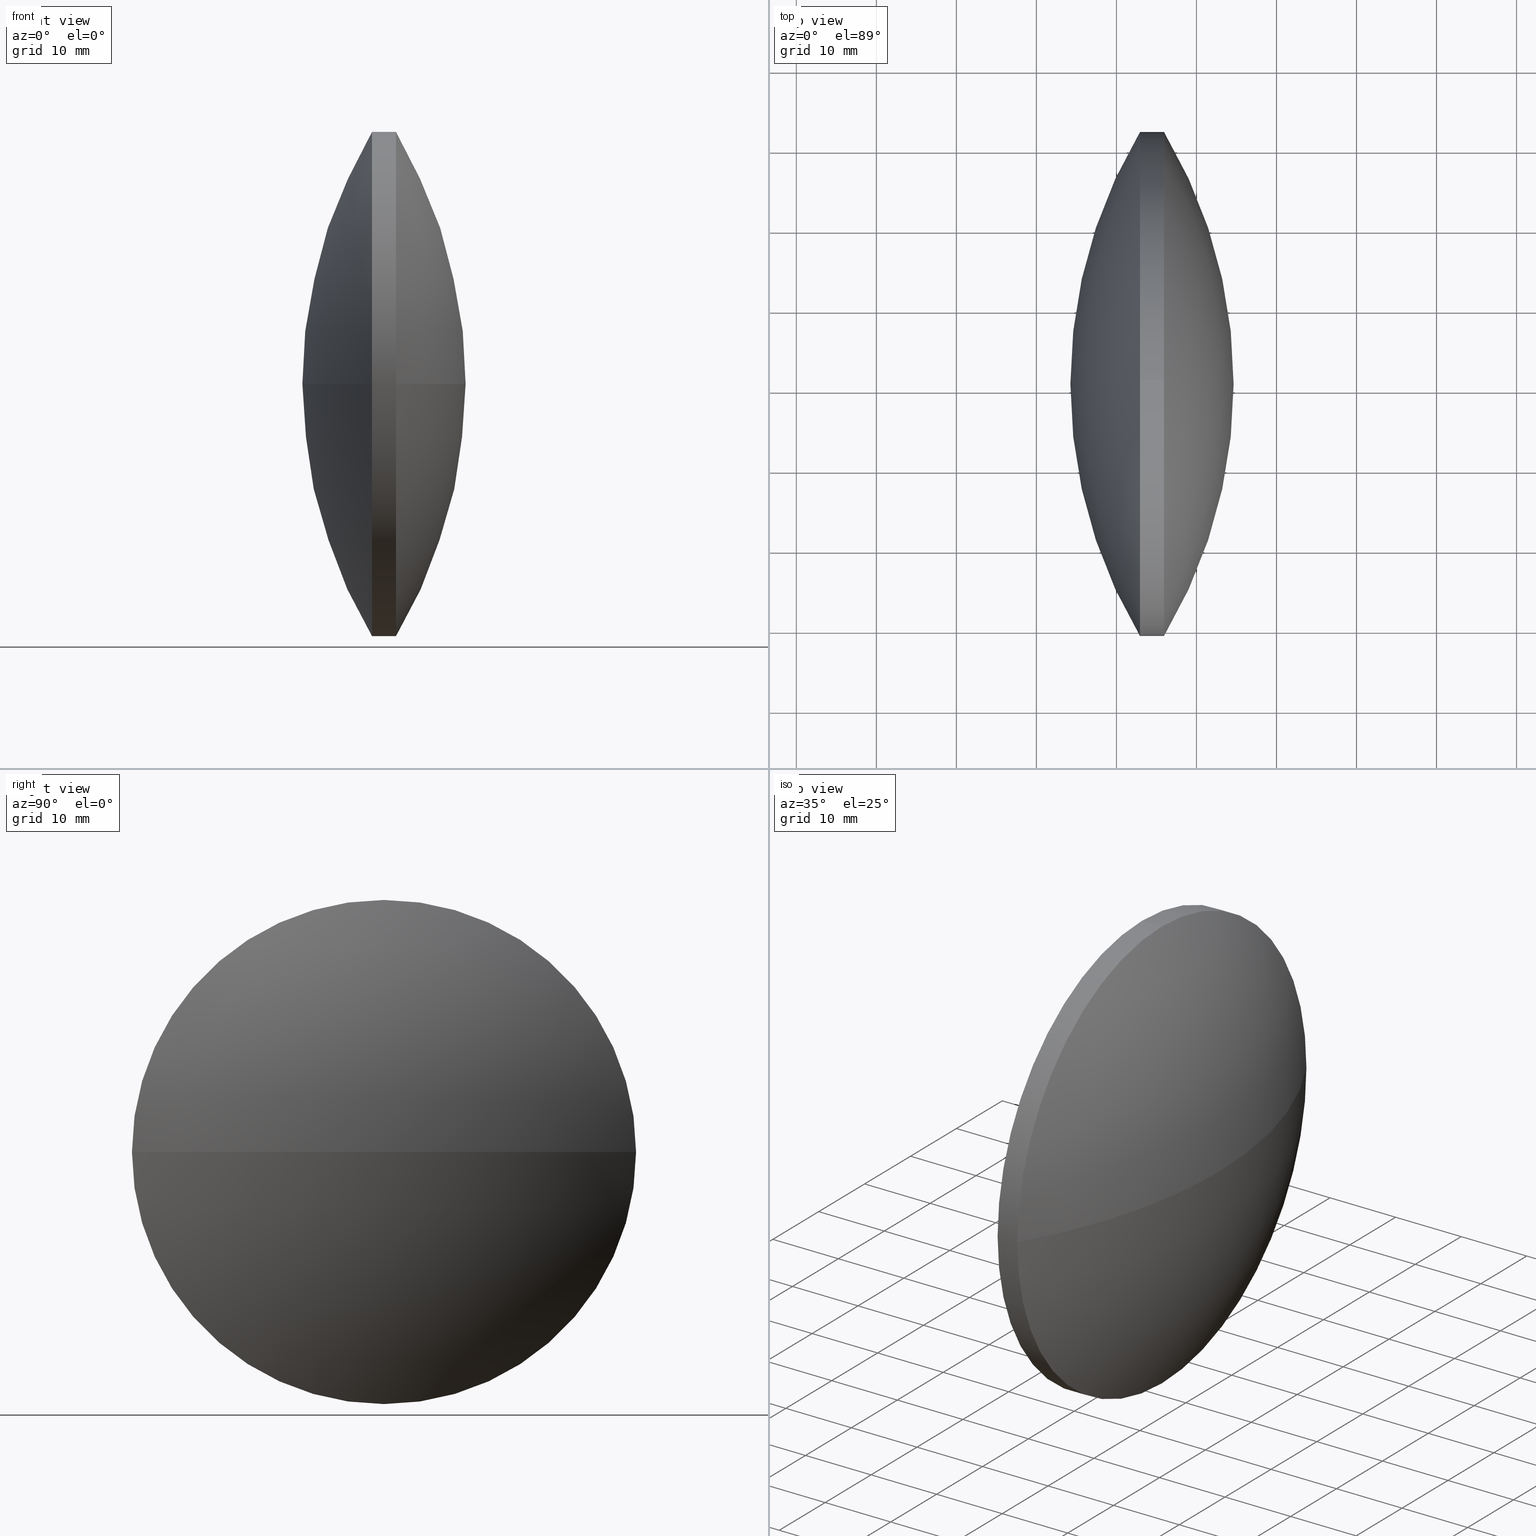
[diagram: canonical four-view strip — front | top / right | iso, engineering-drawing reading convention]
A machine part, canonical four-view strip (front | top / right | iso — engineering-drawing reading convention). The complete STEP part file that produces these views, byte-faithful:
ISO-10303-21;
HEADER;
FILE_DESCRIPTION (( 'STEP AP203' ),
    '1' );
FILE_NAME ('110020.STEP',
    '2019-06-25T06:21:55',
    ( '' ),
    ( '' ),
    'SwSTEP 2.0',
    'SolidWorks 2016',
    '' );
FILE_SCHEMA (( 'CONFIG_CONTROL_DESIGN' ));
ENDSEC;

DATA;
#1 = VERTEX_POINT ( 'NONE', #78 ) ;
#2 = DIRECTION ( 'NONE',  ( 0.0000000000000000000, 0.0000000000000000000, 1.000000000000000000 ) ) ;
#3 = CARTESIAN_POINT ( 'NONE',  ( 215.9444092659714400, 120.5837547940985100, -31.50012600050371200 ) ) ;
#4 = DIRECTION ( 'NONE',  ( -1.000000000000000000, -0.0000000000000000000, -0.0000000000000000000 ) ) ;
#5 = CC_DESIGN_PERSON_AND_ORGANIZATION_ASSIGNMENT ( #311, #159, ( #213 ) ) ;
#6 = DATE_AND_TIME ( #60, #215 ) ;
#7 = ORIENTED_EDGE ( 'NONE', *, *, #71, .F. ) ;
#8 = DIRECTION ( 'NONE',  ( 0.0000000000000000000, 0.0000000000000000000, 1.000000000000000000 ) ) ;
#9 = CARTESIAN_POINT ( 'NONE',  ( 215.9444092659714400, 120.5837547940985100, 0.0000000000000000000 ) ) ;
#10 = DATE_AND_TIME ( #136, #76 ) ;
#11 = ADVANCED_FACE ( 'NONE', ( #165 ), #216, .T. ) ;
#12 = PRODUCT_DEFINITION ( 'δ֪', '', #331, #53 ) ;
#13 = PERSON_AND_ORGANIZATION_ROLE ( 'creator' ) ;
#14 = DATE_AND_TIME ( #337, #160 ) ;
#15 = CIRCLE ( 'NONE', #44, 31.50012600050371200 ) ;
#16 = VERTEX_POINT ( 'NONE', #141 ) ;
#17 =( NAMED_UNIT ( * ) PLANE_ANGLE_UNIT ( ) SI_UNIT ( $, .RADIAN. ) );
#18 = CALENDAR_DATE ( 2019, 25, 6 ) ;
#19 =( GEOMETRIC_REPRESENTATION_CONTEXT ( 3 ) GLOBAL_UNCERTAINTY_ASSIGNED_CONTEXT ( ( #57 ) ) GLOBAL_UNIT_ASSIGNED_CONTEXT ( ( #180, #17, #208 ) ) REPRESENTATION_CONTEXT ( 'NONE', 'WORKASPACE' ) );
#20 = FACE_OUTER_BOUND ( 'NONE', #135, .T. ) ;
#21 = APPLICATION_PROTOCOL_DEFINITION ( 'international standard', 'config_control_design', 1994, #162 ) ;
#22 = APPROVAL_PERSON_ORGANIZATION ( #100, #233, #187 ) ;
#23 = ORIENTED_EDGE ( 'NONE', *, *, #266, .F. ) ;
#24 = APPROVAL_DATE_TIME ( #70, #267 ) ;
#25 = DIRECTION ( 'NONE',  ( 0.0000000000000000000, 0.0000000000000000000, 1.000000000000000000 ) ) ;
#26 = ORIENTED_EDGE ( 'NONE', *, *, #61, .F. ) ;
#27 = CARTESIAN_POINT ( 'NONE',  ( 212.9444092659714400, 89.08362879359475500, -3.857652847925514500E-015 ) ) ;
#28 = DIRECTION ( 'NONE',  ( -0.0000000000000000000, 0.0000000000000000000, 1.000000000000000000 ) ) ;
#29 = APPROVAL ( #202, 'δָ��' ) ;
#30 = DIRECTION ( 'NONE',  ( -0.0000000000000000000, 0.0000000000000000000, -1.000000000000000000 ) ) ;
#31 = LOCAL_TIME ( 14, 21, 55.00000000000000000, #307 ) ;
#32 = ORIENTED_EDGE ( 'NONE', *, *, #222, .T. ) ;
#33 = CARTESIAN_POINT ( 'NONE',  ( 212.9444092659714400, 120.5837547940985100, 0.0000000000000000000 ) ) ;
#34 = LINE ( 'NONE', #75, #168 ) ;
#35 = EDGE_CURVE ( 'NONE', #290, #124, #300, .T. ) ;
#36 = APPLICATION_CONTEXT ( 'configuration controlled 3d designs of mechanical parts and assemblies' ) ;
#37 = PERSON ( 'δָ��', 'δָ��', 'δָ��', ('δָ��'), ('δָ��'), ('δָ��') ) ;
#38 = ADVANCED_FACE ( 'NONE', ( #20 ), #74, .T. ) ;
#39 = VECTOR ( 'NONE', #198, 1000.000000000000000 ) ;
#40 = PERSON_AND_ORGANIZATION_ROLE ( 'creator' ) ;
#41 = LOCAL_TIME ( 14, 21, 55.00000000000000000, #275 ) ;
#42 = ORIENTED_EDGE ( 'NONE', *, *, #244, .T. ) ;
#43 = ADVANCED_BREP_SHAPE_REPRESENTATION ( '110020', ( #287, #272 ), #19 ) ;
#44 = AXIS2_PLACEMENT_3D ( 'NONE', #9, #253, #260 ) ;
#45 = CIRCLE ( 'NONE', #119, 31.50012600050371200 ) ;
#46 = APPROVAL_ROLE ( '' ) ;
#47 = PERSON_AND_ORGANIZATION ( #37, #259 ) ;
#48 = VERTEX_POINT ( 'NONE', #27 ) ;
#49 = CC_DESIGN_DATE_AND_TIME_ASSIGNMENT ( #324, #120, ( #12 ) ) ;
#50 = AXIS2_PLACEMENT_3D ( 'NONE', #145, #263, #122 ) ;
#51 = FACE_OUTER_BOUND ( 'NONE', #334, .T. ) ;
#52 = DIRECTION ( 'NONE',  ( -1.000000000000000000, -0.0000000000000000000, -0.0000000000000000000 ) ) ;
#53 = DESIGN_CONTEXT ( 'detailed design', #36, 'design' ) ;
#54 = AXIS2_PLACEMENT_3D ( 'NONE', #33, #172, #204 ) ;
#55 = CC_DESIGN_PERSON_AND_ORGANIZATION_ASSIGNMENT ( #156, #217, ( #213 ) ) ;
#56 = FACE_OUTER_BOUND ( 'NONE', #280, .T. ) ;
#57 = UNCERTAINTY_MEASURE_WITH_UNIT (LENGTH_MEASURE( 1.000000000000000100E-005 ), #180, 'distance_accuracy_value', 'NONE');
#58 = CARTESIAN_POINT ( 'NONE',  ( 215.9444092659714400, 152.0838807946021800, 0.0000000000000000000 ) ) ;
#59 = PRODUCT_RELATED_PRODUCT_CATEGORY ( 'detail', '', ( #118 ) ) ;
#60 = CALENDAR_DATE ( 2019, 25, 6 ) ;
#61 = EDGE_CURVE ( 'NONE', #207, #182, #276, .T. ) ;
#62 = APPROVAL_DATE_TIME ( #10, #67 ) ;
#63 = LOCAL_TIME ( 14, 21, 55.00000000000000000, #129 ) ;
#64 = CARTESIAN_POINT ( 'NONE',  ( 265.6276363051364300, 120.5837547940984400, 0.0000000000000000000 ) ) ;
#65 = ORIENTED_EDGE ( 'NONE', *, *, #35, .F. ) ;
#66 = DATE_TIME_ROLE ( 'classification_date' ) ;
#67 = APPROVAL ( #261, 'δָ��' ) ;
#68 = ORIENTED_EDGE ( 'NONE', *, *, #99, .F. ) ;
#69 = SECURITY_CLASSIFICATION_LEVEL ( 'unclassified' ) ;
#70 = DATE_AND_TIME ( #18, #95 ) ;
#71 = EDGE_CURVE ( 'NONE', #182, #245, #181, .T. ) ;
#72 = APPROVAL_STATUS ( 'not_yet_approved' ) ;
#73 = CC_DESIGN_PERSON_AND_ORGANIZATION_ASSIGNMENT ( #258, #317, ( #178 ) ) ;
#74 = SPHERICAL_SURFACE ( 'NONE', #194, 61.38224783524788800 ) ;
#75 = CARTESIAN_POINT ( 'NONE',  ( 199.0063995931125200, 120.5837547940985100, 31.50012600050371200 ) ) ;
#76 = LOCAL_TIME ( 14, 21, 55.00000000000000000, #132 ) ;
#77 = VERTEX_POINT ( 'NONE', #104 ) ;
#78 = CARTESIAN_POINT ( 'NONE',  ( 215.9444092659714400, 120.5837547940985100, 31.50012600050371200 ) ) ;
#79 = COORDINATED_UNIVERSAL_TIME_OFFSET ( 8, 0, .AHEAD. ) ;
#80 = APPROVAL_PERSON_ORGANIZATION ( #47, #29, #256 ) ;
#81 = ORIENTED_EDGE ( 'NONE', *, *, #244, .F. ) ;
#82 = DESIGN_CONTEXT ( 'detailed design', #162, 'design' ) ;
#83 = CARTESIAN_POINT ( 'NONE',  ( 212.9444092659714400, 120.5837547940985100, 0.0000000000000000000 ) ) ;
#84 = CC_DESIGN_APPROVAL ( #158, ( #213 ) ) ;
#85 = DIRECTION ( 'NONE',  ( 0.0000000000000000000, 0.0000000000000000000, 1.000000000000000000 ) ) ;
#86 = CALENDAR_DATE ( 2019, 25, 6 ) ;
#87 = ORIENTED_EDGE ( 'NONE', *, *, #61, .T. ) ;
#88 = EDGE_CURVE ( 'NONE', #1, #77, #34, .T. ) ;
#89 = ADVANCED_FACE ( 'NONE', ( #192 ), #268, .T. ) ;
#90 = APPROVAL_PERSON_ORGANIZATION ( #176, #158, #46 ) ;
#91 = SPHERICAL_SURFACE ( 'NONE', #183, 61.38224783524805200 ) ;
#92 = ORIENTED_EDGE ( 'NONE', *, *, #266, .T. ) ;
#93 = AXIS2_PLACEMENT_3D ( 'NONE', #137, #30, #246 ) ;
#94 = APPLICATION_CONTEXT ( 'configuration controlled 3d designs of mechanical parts and assemblies' ) ;
#95 = LOCAL_TIME ( 14, 21, 55.00000000000000000, #301 ) ;
#96 = ORIENTED_EDGE ( 'NONE', *, *, #298, .T. ) ;
#97 = PERSON_AND_ORGANIZATION_ROLE ( 'design_supplier' ) ;
#98 = CC_DESIGN_PERSON_AND_ORGANIZATION_ASSIGNMENT ( #114, #13, ( #12 ) ) ;
#99 = EDGE_CURVE ( 'NONE', #157, #207, #177, .T. ) ;
#100 = PERSON_AND_ORGANIZATION ( #37, #259 ) ;
#101 = ORIENTED_EDGE ( 'NONE', *, *, #282, .T. ) ;
#102 = DATE_TIME_ROLE ( 'creation_date' ) ;
#103 = CYLINDRICAL_SURFACE ( 'NONE', #242, 31.50012600050371200 ) ;
#104 = CARTESIAN_POINT ( 'NONE',  ( 212.9444092659714400, 120.5837547940985100, 31.50012600050371200 ) ) ;
#105 = CC_DESIGN_PERSON_AND_ORGANIZATION_ASSIGNMENT ( #241, #130, ( #236 ) ) ;
#106 = ORIENTED_EDGE ( 'NONE', *, *, #188, .T. ) ;
#107 = AXIS2_PLACEMENT_3D ( 'NONE', #224, #28, #321 ) ;
#108 = DIRECTION ( 'NONE',  ( 0.0000000000000000000, 0.0000000000000000000, 1.000000000000000000 ) ) ;
#109 = APPROVAL_DATE_TIME ( #239, #158 ) ;
#110 = LINE ( 'NONE', #252, #39 ) ;
#111 = CARTESIAN_POINT ( 'NONE',  ( 215.9444092659714400, 120.5837547940985100, 0.0000000000000000000 ) ) ;
#112 = CARTESIAN_POINT ( 'NONE',  ( 212.9444092659714400, 152.0838807946021800, 0.0000000000000000000 ) ) ;
#113 = AXIS2_PLACEMENT_3D ( 'NONE', #251, #218, #2 ) ;
#114 = PERSON_AND_ORGANIZATION ( #37, #259 ) ;
#115 = ORIENTED_EDGE ( 'NONE', *, *, #88, .F. ) ;
#116 = CARTESIAN_POINT ( 'NONE',  ( 265.6276363051364300, 120.5837547940984400, 0.0000000000000000000 ) ) ;
#117 = PRODUCT_RELATED_PRODUCT_CATEGORY ( 'detail', '', ( #126 ) ) ;
#118 = PRODUCT ( '110020', '110020', '', ( #295 ) ) ;
#119 = AXIS2_PLACEMENT_3D ( 'NONE', #83, #230, #85 ) ;
#120 = DATE_TIME_ROLE ( 'creation_date' ) ;
#121 = CARTESIAN_POINT ( 'NONE',  ( 0.0000000000000000000, 0.0000000000000000000, 0.0000000000000000000 ) ) ;
#122 = DIRECTION ( 'NONE',  ( 1.000000000000000000, 0.0000000000000000000, 0.0000000000000000000 ) ) ;
#123 = CIRCLE ( 'NONE', #54, 31.50012600050371200 ) ;
#124 = VERTEX_POINT ( 'NONE', #220 ) ;
#125 = CC_DESIGN_DATE_AND_TIME_ASSIGNMENT ( #214, #291, ( #236 ) ) ;
#126 = PRODUCT ( '110020', '110020', '', ( #314 ) ) ;
#127 = AXIS2_PLACEMENT_3D ( 'NONE', #64, #323, #146 ) ;
#128 = APPROVAL_PERSON_ORGANIZATION ( #201, #267, #240 ) ;
#129 = COORDINATED_UNIVERSAL_TIME_OFFSET ( 8, 0, .AHEAD. ) ;
#130 = PERSON_AND_ORGANIZATION_ROLE ( 'classification_officer' ) ;
#131 = AXIS2_PLACEMENT_3D ( 'NONE', #116, #326, #284 ) ;
#132 = COORDINATED_UNIVERSAL_TIME_OFFSET ( 8, 0, .AHEAD. ) ;
#133 = CC_DESIGN_DATE_AND_TIME_ASSIGNMENT ( #279, #66, ( #264 ) ) ;
#134 = APPROVAL_DATE_TIME ( #206, #247 ) ;
#135 = EDGE_LOOP ( 'NONE', ( #179, #173, #169, #153 ) ) ;
#136 = CALENDAR_DATE ( 2019, 25, 6 ) ;
#137 = CARTESIAN_POINT ( 'NONE',  ( 265.6276363051364300, 120.5837547940984400, 0.0000000000000000000 ) ) ;
#138 = CC_DESIGN_DATE_AND_TIME_ASSIGNMENT ( #150, #102, ( #178 ) ) ;
#139 = CARTESIAN_POINT ( 'NONE',  ( 265.6276363051364300, 120.5837547940984400, 0.0000000000000000000 ) ) ;
#140 = CC_DESIGN_APPROVAL ( #29, ( #12 ) ) ;
#141 = CARTESIAN_POINT ( 'NONE',  ( 204.2453884698883800, 120.5837547940984400, 0.0000000000000000000 ) ) ;
#142 = DIRECTION ( 'NONE',  ( 0.0000000000000000000, 0.0000000000000000000, 1.000000000000000000 ) ) ;
#143 = PERSON_AND_ORGANIZATION ( #37, #259 ) ;
#144 = CALENDAR_DATE ( 2019, 25, 6 ) ;
#145 = CARTESIAN_POINT ( 'NONE',  ( 0.0000000000000000000, 0.0000000000000000000, 0.0000000000000000000 ) ) ;
#146 = DIRECTION ( 'NONE',  ( 0.0000000000000000000, 1.000000000000000000, 1.224646799147353500E-016 ) ) ;
#147 = CARTESIAN_POINT ( 'NONE',  ( 163.2611822268066500, 120.5837547940984100, 0.0000000000000000000 ) ) ;
#148 = ORIENTED_EDGE ( 'NONE', *, *, #35, .T. ) ;
#149 = ADVANCED_FACE ( 'NONE', ( #249 ), #91, .T. ) ;
#150 = DATE_AND_TIME ( #235, #31 ) ;
#151 = PERSON_AND_ORGANIZATION ( #37, #259 ) ;
#152 = CARTESIAN_POINT ( 'NONE',  ( 212.9444092659714400, 120.5837547940985100, 0.0000000000000000000 ) ) ;
#153 = ORIENTED_EDGE ( 'NONE', *, *, #188, .F. ) ;
#154 = AXIS2_PLACEMENT_3D ( 'NONE', #147, #327, #278 ) ;
#155 = DIRECTION ( 'NONE',  ( 1.000000000000000000, 0.0000000000000000000, 0.0000000000000000000 ) ) ;
#156 = PERSON_AND_ORGANIZATION ( #37, #259 ) ;
#157 = VERTEX_POINT ( 'NONE', #306 ) ;
#158 = APPROVAL ( #212, 'δָ��' ) ;
#159 = PERSON_AND_ORGANIZATION_ROLE ( 'creator' ) ;
#160 = LOCAL_TIME ( 14, 21, 55.00000000000000000, #341 ) ;
#161 = PERSON_AND_ORGANIZATION ( #37, #259 ) ;
#162 = APPLICATION_CONTEXT ( 'configuration controlled 3d designs of mechanical parts and assemblies' ) ;
#163 = DIRECTION ( 'NONE',  ( -1.000000000000000000, -0.0000000000000000000, -0.0000000000000000000 ) ) ;
#164 = CALENDAR_DATE ( 2019, 25, 6 ) ;
#165 = FACE_OUTER_BOUND ( 'NONE', #285, .T. ) ;
#166 = LOCAL_TIME ( 14, 21, 55.00000000000000000, #79 ) ;
#167 = CARTESIAN_POINT ( 'NONE',  ( 212.9444092659714400, 120.5837547940985100, 0.0000000000000000000 ) ) ;
#168 = VECTOR ( 'NONE', #52, 1000.000000000000000 ) ;
#169 = ORIENTED_EDGE ( 'NONE', *, *, #282, .F. ) ;
#170 = CC_DESIGN_SECURITY_CLASSIFICATION ( #264, ( #331 ) ) ;
#171 = CARTESIAN_POINT ( 'NONE',  ( 199.0063995931125200, 120.5837547940985100, 0.0000000000000000000 ) ) ;
#172 = DIRECTION ( 'NONE',  ( -1.000000000000000000, -0.0000000000000000000, -0.0000000000000000000 ) ) ;
#173 = ORIENTED_EDGE ( 'NONE', *, *, #99, .T. ) ;
#174 = DIRECTION ( 'NONE',  ( 0.0000000000000000000, 1.000000000000000000, 0.0000000000000000000 ) ) ;
#175 = CC_DESIGN_PERSON_AND_ORGANIZATION_ASSIGNMENT ( #274, #332, ( #264 ) ) ;
#176 = PERSON_AND_ORGANIZATION ( #37, #259 ) ;
#177 = CIRCLE ( 'NONE', #107, 61.38224783524790200 ) ;
#178 = PRODUCT_DEFINITION ( 'δ֪', '', #213, #82 ) ;
#179 = ORIENTED_EDGE ( 'NONE', *, *, #277, .F. ) ;
#180 =( LENGTH_UNIT ( ) NAMED_UNIT ( * ) SI_UNIT ( .MILLI., .METRE. ) );
#181 = CIRCLE ( 'NONE', #255, 31.50012600050371200 ) ;
#182 = VERTEX_POINT ( 'NONE', #3 ) ;
#183 = AXIS2_PLACEMENT_3D ( 'NONE', #139, #223, #197 ) ;
#184 = APPLICATION_PROTOCOL_DEFINITION ( 'international standard', 'config_control_design', 1994, #313 ) ;
#185 = CALENDAR_DATE ( 2019, 25, 6 ) ;
#186 = APPROVAL_STATUS ( 'not_yet_approved' ) ;
#187 = APPROVAL_ROLE ( '' ) ;
#188 = EDGE_CURVE ( 'NONE', #245, #1, #15, .T. ) ;
#189 = PERSON_AND_ORGANIZATION ( #37, #259 ) ;
#190 = ORIENTED_EDGE ( 'NONE', *, *, #250, .F. ) ;
#191 = CARTESIAN_POINT ( 'NONE',  ( 163.2611822268066500, 120.5837547940984100, 0.0000000000000000000 ) ) ;
#192 = FACE_OUTER_BOUND ( 'NONE', #294, .T. ) ;
#193 = DIRECTION ( 'NONE',  ( -0.0000000000000000000, 0.0000000000000000000, -1.000000000000000000 ) ) ;
#194 = AXIS2_PLACEMENT_3D ( 'NONE', #191, #193, #196 ) ;
#195 = CC_DESIGN_PERSON_AND_ORGANIZATION_ASSIGNMENT ( #143, #40, ( #331 ) ) ;
#196 = DIRECTION ( 'NONE',  ( 0.0000000000000000000, 1.000000000000000000, 0.0000000000000000000 ) ) ;
#197 = DIRECTION ( 'NONE',  ( 0.0000000000000000000, 1.000000000000000000, 0.0000000000000000000 ) ) ;
#198 = DIRECTION ( 'NONE',  ( -1.000000000000000000, -0.0000000000000000000, -0.0000000000000000000 ) ) ;
#199 = ORIENTED_EDGE ( 'NONE', *, *, #277, .T. ) ;
#200 = EDGE_CURVE ( 'NONE', #124, #48, #45, .T. ) ;
#201 = PERSON_AND_ORGANIZATION ( #37, #259 ) ;
#202 = APPROVAL_STATUS ( 'not_yet_approved' ) ;
#203 = PERSON_AND_ORGANIZATION ( #37, #259 ) ;
#204 = DIRECTION ( 'NONE',  ( 0.0000000000000000000, 0.0000000000000000000, 1.000000000000000000 ) ) ;
#205 = AXIS2_PLACEMENT_3D ( 'NONE', #304, #303, #142 ) ;
#206 = DATE_AND_TIME ( #144, #63 ) ;
#207 = VERTEX_POINT ( 'NONE', #58 ) ;
#208 =( NAMED_UNIT ( * ) SI_UNIT ( $, .STERADIAN. ) SOLID_ANGLE_UNIT ( ) );
#209 = APPROVAL_ROLE ( '' ) ;
#210 = APPROVAL_PERSON_ORGANIZATION ( #203, #67, #209 ) ;
#211 = ORIENTED_EDGE ( 'NONE', *, *, #250, .T. ) ;
#212 = APPROVAL_STATUS ( 'not_yet_approved' ) ;
#213 = PRODUCT_DEFINITION_FORMATION_WITH_SPECIFIED_SOURCE ( '�κ�', '', #118, .NOT_KNOWN. ) ;
#214 = DATE_AND_TIME ( #283, #166 ) ;
#215 = LOCAL_TIME ( 14, 21, 55.00000000000000000, #226 ) ;
#216 = SPHERICAL_SURFACE ( 'NONE', #93, 61.38224783524805200 ) ;
#217 = PERSON_AND_ORGANIZATION_ROLE ( 'design_supplier' ) ;
#218 = DIRECTION ( 'NONE',  ( -1.000000000000000000, -0.0000000000000000000, -0.0000000000000000000 ) ) ;
#219 = APPROVAL_DATE_TIME ( #14, #233 ) ;
#220 = CARTESIAN_POINT ( 'NONE',  ( 212.9444092659714400, 120.5837547940985100, -31.50012600050371200 ) ) ;
#221 = CLOSED_SHELL ( 'NONE', ( #89, #281, #149, #11, #38, #257 ) ) ;
#222 = EDGE_CURVE ( 'NONE', #77, #290, #123, .T. ) ;
#223 = DIRECTION ( 'NONE',  ( -0.0000000000000000000, 0.0000000000000000000, -1.000000000000000000 ) ) ;
#224 = CARTESIAN_POINT ( 'NONE',  ( 163.2611822268066500, 120.5837547940984100, 0.0000000000000000000 ) ) ;
#225 = COORDINATED_UNIVERSAL_TIME_OFFSET ( 8, 0, .AHEAD. ) ;
#226 = COORDINATED_UNIVERSAL_TIME_OFFSET ( 8, 0, .AHEAD. ) ;
#227 = ORIENTED_EDGE ( 'NONE', *, *, #88, .T. ) ;
#228 = AXIS2_PLACEMENT_3D ( 'NONE', #152, #286, #238 ) ;
#229 = DIRECTION ( 'NONE',  ( -1.000000000000000000, -0.0000000000000000000, -0.0000000000000000000 ) ) ;
#230 = DIRECTION ( 'NONE',  ( -1.000000000000000000, -0.0000000000000000000, -0.0000000000000000000 ) ) ;
#231 = COORDINATED_UNIVERSAL_TIME_OFFSET ( 8, 0, .AHEAD. ) ;
#232 = ORIENTED_EDGE ( 'NONE', *, *, #222, .F. ) ;
#233 = APPROVAL ( #186, 'δָ��' ) ;
#234 = APPLICATION_PROTOCOL_DEFINITION ( 'international standard', 'config_control_design', 1994, #36 ) ;
#235 = CALENDAR_DATE ( 2019, 25, 6 ) ;
#236 = SECURITY_CLASSIFICATION ( '', '', #292 ) ;
#237 = CARTESIAN_POINT ( 'NONE',  ( 215.9444092659714400, 89.08362879359474100, -3.857652847925513700E-015 ) ) ;
#238 = DIRECTION ( 'NONE',  ( 0.0000000000000000000, 0.0000000000000000000, 1.000000000000000000 ) ) ;
#239 = DATE_AND_TIME ( #164, #289 ) ;
#240 = APPROVAL_ROLE ( '' ) ;
#241 = PERSON_AND_ORGANIZATION ( #37, #259 ) ;
#242 = AXIS2_PLACEMENT_3D ( 'NONE', #171, #229, #8 ) ;
#243 = SPHERICAL_SURFACE ( 'NONE', #345, 61.38224783524788800 ) ;
#244 = EDGE_CURVE ( 'NONE', #182, #124, #110, .T. ) ;
#245 = VERTEX_POINT ( 'NONE', #237 ) ;
#246 = DIRECTION ( 'NONE',  ( 0.0000000000000000000, 1.000000000000000000, 0.0000000000000000000 ) ) ;
#247 = APPROVAL ( #310, 'δָ��' ) ;
#248 = DIRECTION ( 'NONE',  ( -1.000000000000000000, -0.0000000000000000000, -0.0000000000000000000 ) ) ;
#249 = FACE_OUTER_BOUND ( 'NONE', #318, .T. ) ;
#250 = EDGE_CURVE ( 'NONE', #48, #16, #333, .T. ) ;
#251 = CARTESIAN_POINT ( 'NONE',  ( 199.0063995931125200, 120.5837547940985100, 0.0000000000000000000 ) ) ;
#252 = CARTESIAN_POINT ( 'NONE',  ( 199.0063995931125200, 120.5837547940985100, -31.50012600050371200 ) ) ;
#253 = DIRECTION ( 'NONE',  ( -1.000000000000000000, -0.0000000000000000000, -0.0000000000000000000 ) ) ;
#254 = SHAPE_DEFINITION_REPRESENTATION ( #340, #43 ) ;
#255 = AXIS2_PLACEMENT_3D ( 'NONE', #297, #163, #25 ) ;
#256 = APPROVAL_ROLE ( '' ) ;
#257 = ADVANCED_FACE ( 'NONE', ( #51 ), #103, .T. ) ;
#258 = PERSON_AND_ORGANIZATION ( #37, #259 ) ;
#259 = ORGANIZATION ( 'δָ��', 'δָ��', '' ) ;
#260 = DIRECTION ( 'NONE',  ( 0.0000000000000000000, 0.0000000000000000000, 1.000000000000000000 ) ) ;
#261 = APPROVAL_STATUS ( 'not_yet_approved' ) ;
#262 = CIRCLE ( 'NONE', #131, 61.38224783524803700 ) ;
#263 = DIRECTION ( 'NONE',  ( 0.0000000000000000000, 0.0000000000000000000, 1.000000000000000000 ) ) ;
#264 = SECURITY_CLASSIFICATION ( '', '', #69 ) ;
#265 = CIRCLE ( 'NONE', #228, 31.50012600050371200 ) ;
#266 = EDGE_CURVE ( 'NONE', #290, #16, #262, .T. ) ;
#267 = APPROVAL ( #72, 'δָ��' ) ;
#268 = CYLINDRICAL_SURFACE ( 'NONE', #113, 31.50012600050371200 ) ;
#269 = PERSON_AND_ORGANIZATION_ROLE ( 'design_owner' ) ;
#270 = DIRECTION ( 'NONE',  ( 0.0000000000000000000, 0.0000000000000000000, 1.000000000000000000 ) ) ;
#271 = CC_DESIGN_APPROVAL ( #233, ( #236 ) ) ;
#272 = AXIS2_PLACEMENT_3D ( 'NONE', #121, #322, #155 ) ;
#273 = APPROVAL_PERSON_ORGANIZATION ( #151, #247, #329 ) ;
#274 = PERSON_AND_ORGANIZATION ( #37, #259 ) ;
#275 = COORDINATED_UNIVERSAL_TIME_OFFSET ( 8, 0, .AHEAD. ) ;
#276 = CIRCLE ( 'NONE', #330, 31.50012600050371200 ) ;
#277 = EDGE_CURVE ( 'NONE', #157, #245, #342, .T. ) ;
#278 = DIRECTION ( 'NONE',  ( 0.0000000000000000000, 1.000000000000000000, 1.224646799147352700E-016 ) ) ;
#279 = DATE_AND_TIME ( #86, #293 ) ;
#280 = EDGE_LOOP ( 'NONE', ( #68, #199, #7, #26 ) ) ;
#281 = ADVANCED_FACE ( 'NONE', ( #56 ), #243, .T. ) ;
#282 = EDGE_CURVE ( 'NONE', #1, #207, #328, .T. ) ;
#283 = CALENDAR_DATE ( 2019, 25, 6 ) ;
#284 = DIRECTION ( 'NONE',  ( 1.000000000000000000, 0.0000000000000000000, 0.0000000000000000000 ) ) ;
#285 = EDGE_LOOP ( 'NONE', ( #190, #96, #32, #92 ) ) ;
#286 = DIRECTION ( 'NONE',  ( -1.000000000000000000, -0.0000000000000000000, -0.0000000000000000000 ) ) ;
#287 = MANIFOLD_SOLID_BREP ( '��ת1', #221 ) ;
#288 = APPLICATION_PROTOCOL_DEFINITION ( 'international standard', 'config_control_design', 1994, #94 ) ;
#289 = LOCAL_TIME ( 14, 21, 55.00000000000000000, #231 ) ;
#290 = VERTEX_POINT ( 'NONE', #112 ) ;
#291 = DATE_TIME_ROLE ( 'classification_date' ) ;
#292 = SECURITY_CLASSIFICATION_LEVEL ( 'unclassified' ) ;
#293 = LOCAL_TIME ( 14, 21, 55.00000000000000000, #225 ) ;
#294 = EDGE_LOOP ( 'NONE', ( #87, #42, #65, #232, #115, #101 ) ) ;
#295 = MECHANICAL_CONTEXT ( 'NONE', #313, 'mechanical' ) ;
#296 = CC_DESIGN_APPROVAL ( #267, ( #178 ) ) ;
#297 = CARTESIAN_POINT ( 'NONE',  ( 215.9444092659714400, 120.5837547940985100, 0.0000000000000000000 ) ) ;
#298 = EDGE_CURVE ( 'NONE', #48, #77, #265, .T. ) ;
#299 = PERSON_AND_ORGANIZATION ( #37, #259 ) ;
#300 = CIRCLE ( 'NONE', #316, 31.50012600050371200 ) ;
#301 = COORDINATED_UNIVERSAL_TIME_OFFSET ( 8, 0, .AHEAD. ) ;
#302 = ORIENTED_EDGE ( 'NONE', *, *, #200, .F. ) ;
#303 = DIRECTION ( 'NONE',  ( -1.000000000000000000, -0.0000000000000000000, -0.0000000000000000000 ) ) ;
#304 = CARTESIAN_POINT ( 'NONE',  ( 215.9444092659714400, 120.5837547940985100, 0.0000000000000000000 ) ) ;
#305 = DIRECTION ( 'NONE',  ( -0.0000000000000000000, 0.0000000000000000000, -1.000000000000000000 ) ) ;
#306 = CARTESIAN_POINT ( 'NONE',  ( 224.6434300620545600, 120.5837547940984100, 0.0000000000000000000 ) ) ;
#307 = COORDINATED_UNIVERSAL_TIME_OFFSET ( 8, 0, .AHEAD. ) ;
#308 = ORIENTED_EDGE ( 'NONE', *, *, #298, .F. ) ;
#309 = CC_DESIGN_SECURITY_CLASSIFICATION ( #236, ( #213 ) ) ;
#310 = APPROVAL_STATUS ( 'not_yet_approved' ) ;
#311 = PERSON_AND_ORGANIZATION ( #37, #259 ) ;
#312 = CARTESIAN_POINT ( 'NONE',  ( 163.2611822268066500, 120.5837547940984100, 0.0000000000000000000 ) ) ;
#313 = APPLICATION_CONTEXT ( 'configuration controlled 3d designs of mechanical parts and assemblies' ) ;
#314 = MECHANICAL_CONTEXT ( 'NONE', #94, 'mechanical' ) ;
#315 = ORIENTED_EDGE ( 'NONE', *, *, #200, .T. ) ;
#316 = AXIS2_PLACEMENT_3D ( 'NONE', #167, #248, #270 ) ;
#317 = PERSON_AND_ORGANIZATION_ROLE ( 'creator' ) ;
#318 = EDGE_LOOP ( 'NONE', ( #148, #315, #211, #23 ) ) ;
#319 = CC_DESIGN_APPROVAL ( #247, ( #331 ) ) ;
#320 = CC_DESIGN_PERSON_AND_ORGANIZATION_ASSIGNMENT ( #161, #269, ( #118 ) ) ;
#321 = DIRECTION ( 'NONE',  ( 1.000000000000000000, 0.0000000000000000000, 0.0000000000000000000 ) ) ;
#322 = DIRECTION ( 'NONE',  ( 0.0000000000000000000, 0.0000000000000000000, 1.000000000000000000 ) ) ;
#323 = DIRECTION ( 'NONE',  ( 0.0000000000000000000, 1.224646799147353200E-016, -1.000000000000000000 ) ) ;
#324 = DATE_AND_TIME ( #185, #41 ) ;
#325 = CC_DESIGN_PERSON_AND_ORGANIZATION_ASSIGNMENT ( #299, #97, ( #331 ) ) ;
#326 = DIRECTION ( 'NONE',  ( -0.0000000000000000000, 0.0000000000000000000, 1.000000000000000000 ) ) ;
#327 = DIRECTION ( 'NONE',  ( 0.0000000000000000000, 1.224646799147353200E-016, -1.000000000000000000 ) ) ;
#328 = CIRCLE ( 'NONE', #205, 31.50012600050371200 ) ;
#329 = APPROVAL_ROLE ( '' ) ;
#330 = AXIS2_PLACEMENT_3D ( 'NONE', #111, #4, #108 ) ;
#331 = PRODUCT_DEFINITION_FORMATION_WITH_SPECIFIED_SOURCE ( '�κ�', '', #126, .NOT_KNOWN. ) ;
#332 = PERSON_AND_ORGANIZATION_ROLE ( 'classification_officer' ) ;
#333 = CIRCLE ( 'NONE', #127, 61.38224783524803700 ) ;
#334 = EDGE_LOOP ( 'NONE', ( #81, #343, #106, #227, #308, #302 ) ) ;
#335 = PERSON_AND_ORGANIZATION_ROLE ( 'design_owner' ) ;
#336 = PRODUCT_DEFINITION_SHAPE ( 'NONE', 'NONE',  #12 ) ;
#337 = CALENDAR_DATE ( 2019, 25, 6 ) ;
#338 = APPROVAL_DATE_TIME ( #6, #29 ) ;
#339 = CC_DESIGN_PERSON_AND_ORGANIZATION_ASSIGNMENT ( #189, #335, ( #126 ) ) ;
#340 = PRODUCT_DEFINITION_SHAPE ( 'NONE', 'NONE',  #178 ) ;
#341 = COORDINATED_UNIVERSAL_TIME_OFFSET ( 8, 0, .AHEAD. ) ;
#342 = CIRCLE ( 'NONE', #154, 61.38224783524790200 ) ;
#343 = ORIENTED_EDGE ( 'NONE', *, *, #71, .T. ) ;
#344 = CC_DESIGN_APPROVAL ( #67, ( #264 ) ) ;
#345 = AXIS2_PLACEMENT_3D ( 'NONE', #312, #305, #174 ) ;
ENDSEC;
END-ISO-10303-21;
